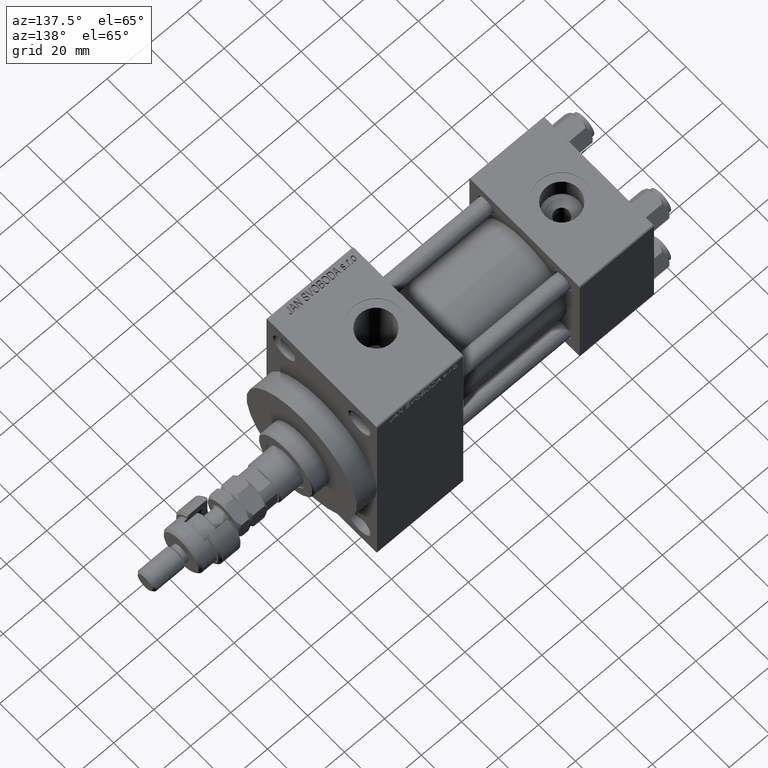
[diagram: clean part render]
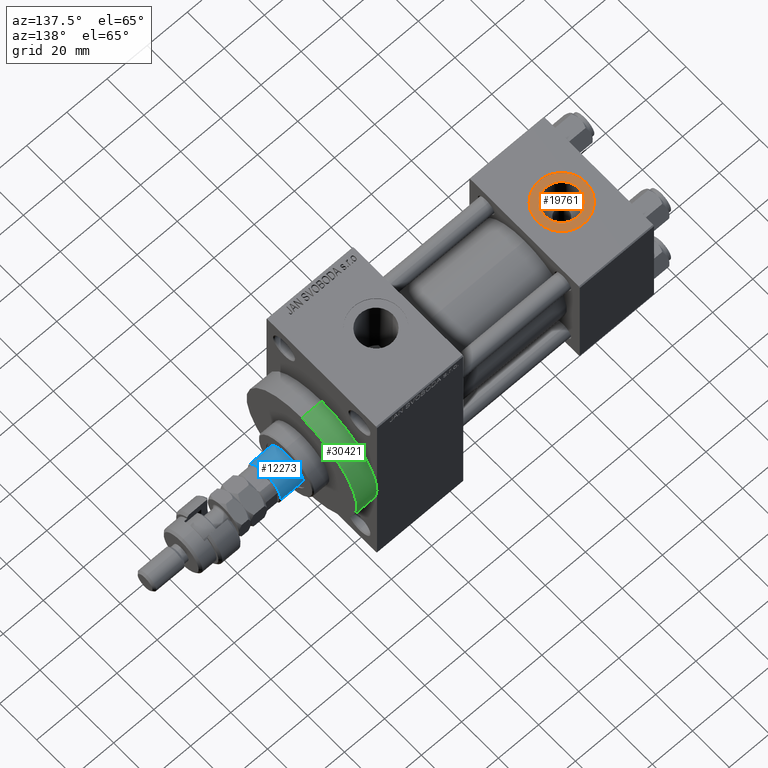
[diagram: same view with three faces highlighted in distinct colors, each labeled with its STEP entity id]
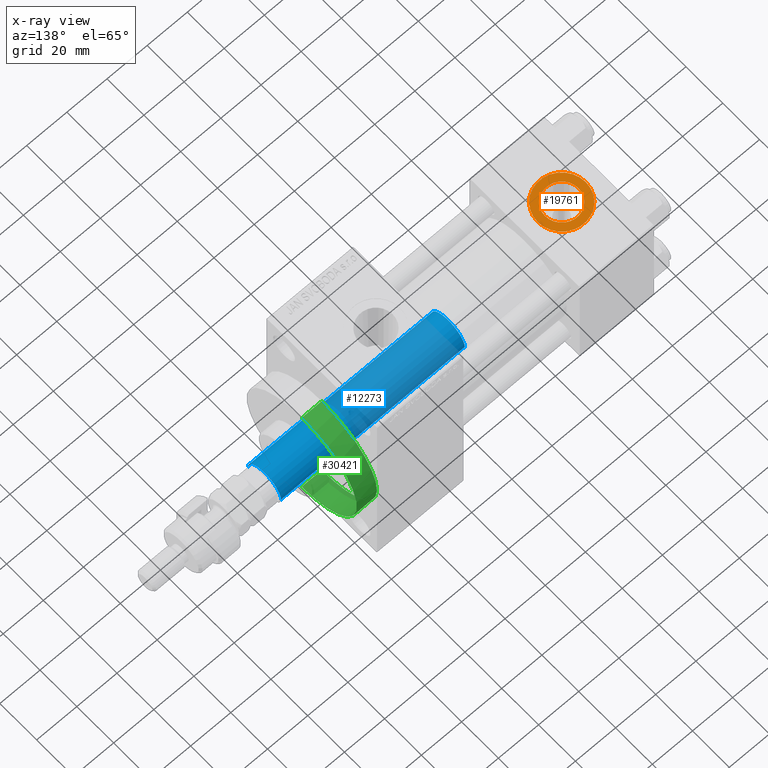
[diagram: x-ray of the same camera — body ghosted, the three highlighted faces saturated]
A machine part, auxiliary view with three faces highlighted in distinct colors.
The next image is the same camera in x-ray (body ghosted, the three faces saturated) — at least one of them is partly hidden behind the body in this view.
Their STEP definitions:

[orange] entity #19761 — the highlighted planar face has unit normal (0, 0, 1).
#197 = DIRECTION ( 'NONE',  ( 0.000000000000000000, 0.000000000000000000, 1.000000000000000000 ) ) ;
#3991 = PLANE ( 'NONE',  #5425 ) ;
#4895 = EDGE_CURVE ( 'NONE', #6168, #49046, #20311, .T. ) ;
#5189 = ORIENTED_EDGE ( 'NONE', *, *, #22609, .T. ) ;
#5425 = AXIS2_PLACEMENT_3D ( 'NONE', #34869, #197, #38913 ) ;
#6168 = VERTEX_POINT ( 'NONE', #46751 ) ;
#7315 = EDGE_LOOP ( 'NONE', ( #5189, #30225 ) ) ;
#7776 = DIRECTION ( 'NONE',  ( 0.000000000000000000, 0.000000000000000000, 1.000000000000000000 ) ) ;
#10542 = AXIS2_PLACEMENT_3D ( 'NONE', #23954, #7776, #19638 ) ;
#10959 = CARTESIAN_POINT ( 'NONE',  ( 10.16999999999999638, -2.449316168263869821E-15, 29.79999999999999716 ) ) ;
#14733 = AXIS2_PLACEMENT_3D ( 'NONE', #27006, #34129, #15871 ) ;
#15871 = DIRECTION ( 'NONE',  ( 1.000000000000000000, 0.000000000000000000, 0.000000000000000000 ) ) ;
#16189 = DIRECTION ( 'NONE',  ( 1.000000000000000000, 0.000000000000000000, 0.000000000000000000 ) ) ;
#19549 = ORIENTED_EDGE ( 'NONE', *, *, #44559, .F. ) ;
#19638 = DIRECTION ( 'NONE',  ( 1.000000000000000000, 0.000000000000000000, 0.000000000000000000 ) ) ;
#19761 = ADVANCED_FACE ( 'NONE', ( #23214, #38669 ), #3991, .T. ) ;
#20311 = CIRCLE ( 'NONE', #40552, 8.330000000000000071 ) ;
#22609 = EDGE_CURVE ( 'NONE', #26451, #49021, #33197, .T. ) ;
#23138 = DIRECTION ( 'NONE',  ( 0.000000000000000000, 0.000000000000000000, 1.000000000000000000 ) ) ;
#23214 = FACE_BOUND ( 'NONE', #47845, .T. ) ;
#23954 = CARTESIAN_POINT ( 'NONE',  ( 18.50000000000000000, -3.469446951953614978E-15, 29.79999999999999716 ) ) ;
#24791 = CARTESIAN_POINT ( 'NONE',  ( 30.50000000000000000, -3.469446951953614978E-15, 29.79999999999999716 ) ) ;
#26451 = VERTEX_POINT ( 'NONE', #24791 ) ;
#27006 = CARTESIAN_POINT ( 'NONE',  ( 18.50000000000000000, -3.469446951953614978E-15, 29.79999999999999716 ) ) ;
#27410 = EDGE_CURVE ( 'NONE', #49021, #26451, #29326, .T. ) ;
#29326 = CIRCLE ( 'NONE', #14733, 12.00000000000000000 ) ;
#29913 = ORIENTED_EDGE ( 'NONE', *, *, #4895, .F. ) ;
#30225 = ORIENTED_EDGE ( 'NONE', *, *, #27410, .T. ) ;
#33197 = CIRCLE ( 'NONE', #10542, 12.00000000000000000 ) ;
#34129 = DIRECTION ( 'NONE',  ( 0.000000000000000000, 0.000000000000000000, 1.000000000000000000 ) ) ;
#34869 = CARTESIAN_POINT ( 'NONE',  ( 18.50000000000000000, -3.469446951953614978E-15, 29.79999999999999716 ) ) ;
#35053 = CARTESIAN_POINT ( 'NONE',  ( 18.50000000000000000, -3.469446951953614978E-15, 29.79999999999999716 ) ) ;
#35444 = AXIS2_PLACEMENT_3D ( 'NONE', #35053, #23138, #49981 ) ;
#38669 = FACE_OUTER_BOUND ( 'NONE', #7315, .T. ) ;
#38913 = DIRECTION ( 'NONE',  ( 1.000000000000000000, 0.000000000000000000, -0.000000000000000000 ) ) ;
#40552 = AXIS2_PLACEMENT_3D ( 'NONE', #46340, #43297, #16189 ) ;
#43297 = DIRECTION ( 'NONE',  ( 0.000000000000000000, 0.000000000000000000, 1.000000000000000000 ) ) ;
#44357 = CIRCLE ( 'NONE', #35444, 8.330000000000000071 ) ;
#44559 = EDGE_CURVE ( 'NONE', #49046, #6168, #44357, .T. ) ;
#45634 = CARTESIAN_POINT ( 'NONE',  ( 6.499999999999997335, -1.999870792976790833E-15, 29.79999999999999716 ) ) ;
#46340 = CARTESIAN_POINT ( 'NONE',  ( 18.50000000000000000, -3.469446951953614978E-15, 29.79999999999999716 ) ) ;
#46751 = CARTESIAN_POINT ( 'NONE',  ( 26.82999999999999829, -3.469446951953614978E-15, 29.79999999999999716 ) ) ;
#47845 = EDGE_LOOP ( 'NONE', ( #29913, #19549 ) ) ;
#49021 = VERTEX_POINT ( 'NONE', #45634 ) ;
#49046 = VERTEX_POINT ( 'NONE', #10959 ) ;
#49981 = DIRECTION ( 'NONE',  ( 1.000000000000000000, 0.000000000000000000, 0.000000000000000000 ) ) ;

[blue] entity #12273 — the highlighted cylindrical surface (edge-blend (fillet) strip) has radius 9 mm, axis along (-1, 0, 0).
#1634 = ORIENTED_EDGE ( 'NONE', *, *, #20786, .T. ) ;
#2264 = CARTESIAN_POINT ( 'NONE',  ( 0.000000000000000000, 0.000000000000000000, 130.0000000000000000 ) ) ;
#3472 = CARTESIAN_POINT ( 'NONE',  ( -9.000000000000000000, 0.000000000000000000, 130.0000000000000000 ) ) ;
#5330 = ORIENTED_EDGE ( 'NONE', *, *, #49452, .F. ) ;
#6947 = EDGE_CURVE ( 'NONE', #22898, #25403, #31697, .T. ) ;
#8573 = EDGE_LOOP ( 'NONE', ( #5330, #27372, #1634, #22064 ) ) ;
#9037 = LINE ( 'NONE', #35869, #37732 ) ;
#9211 = AXIS2_PLACEMENT_3D ( 'NONE', #2264, #29811, #21723 ) ;
#12273 = ADVANCED_FACE ( 'NONE', ( #21960 ), #14375, .T. ) ;
#12325 = DIRECTION ( 'NONE',  ( -0.000000000000000000, -0.000000000000000000, -1.000000000000000000 ) ) ;
#14340 = VECTOR ( 'NONE', #15588, 1000.000000000000000 ) ;
#14375 = CYLINDRICAL_SURFACE ( 'NONE', #9211, 9.000000000000000000 ) ;
#14968 = CARTESIAN_POINT ( 'NONE',  ( -9.000000000000000000, 0.000000000000000000, 129.5000000000000000 ) ) ;
#15588 = DIRECTION ( 'NONE',  ( -0.000000000000000000, -0.000000000000000000, -1.000000000000000000 ) ) ;
#16085 = VERTEX_POINT ( 'NONE', #42177 ) ;
#18675 = CARTESIAN_POINT ( 'NONE',  ( 0.000000000000000000, 0.000000000000000000, 129.5000000000000000 ) ) ;
#20666 = DIRECTION ( 'NONE',  ( 0.000000000000000000, 0.000000000000000000, 1.000000000000000000 ) ) ;
#20786 = EDGE_CURVE ( 'NONE', #25403, #41037, #38147, .T. ) ;
#21723 = DIRECTION ( 'NONE',  ( -1.000000000000000000, 0.000000000000000000, 0.000000000000000000 ) ) ;
#21960 = FACE_OUTER_BOUND ( 'NONE', #8573, .T. ) ;
#21991 = DIRECTION ( 'NONE',  ( 1.000000000000000000, 0.000000000000000000, 0.000000000000000000 ) ) ;
#22064 = ORIENTED_EDGE ( 'NONE', *, *, #36762, .T. ) ;
#22898 = VERTEX_POINT ( 'NONE', #46439 ) ;
#25403 = VERTEX_POINT ( 'NONE', #14968 ) ;
#25478 = CIRCLE ( 'NONE', #44895, 9.000000000000000000 ) ;
#27372 = ORIENTED_EDGE ( 'NONE', *, *, #6947, .T. ) ;
#27487 = CARTESIAN_POINT ( 'NONE',  ( 0.000000000000000000, 0.000000000000000000, 38.00000000000000000 ) ) ;
#29811 = DIRECTION ( 'NONE',  ( -0.000000000000000000, -0.000000000000000000, -1.000000000000000000 ) ) ;
#31697 = CIRCLE ( 'NONE', #40620, 9.000000000000000000 ) ;
#35869 = CARTESIAN_POINT ( 'NONE',  ( 9.000000000000000000, 1.102182119232617714E-15, 130.0000000000000000 ) ) ;
#36762 = EDGE_CURVE ( 'NONE', #41037, #16085, #25478, .T. ) ;
#37732 = VECTOR ( 'NONE', #12325, 1000.000000000000000 ) ;
#37913 = CARTESIAN_POINT ( 'NONE',  ( -9.000000000000000000, 0.000000000000000000, 38.00000000000000000 ) ) ;
#37935 = DIRECTION ( 'NONE',  ( 0.000000000000000000, 0.000000000000000000, -1.000000000000000000 ) ) ;
#38147 = LINE ( 'NONE', #3472, #14340 ) ;
#40620 = AXIS2_PLACEMENT_3D ( 'NONE', #18675, #37935, #21991 ) ;
#41037 = VERTEX_POINT ( 'NONE', #37913 ) ;
#42177 = CARTESIAN_POINT ( 'NONE',  ( 9.000000000000000000, 1.102182119232617714E-15, 38.00000000000000000 ) ) ;
#44895 = AXIS2_PLACEMENT_3D ( 'NONE', #27487, #20666, #47757 ) ;
#46439 = CARTESIAN_POINT ( 'NONE',  ( 9.000000000000000000, 1.102182119232617714E-15, 129.5000000000000000 ) ) ;
#47757 = DIRECTION ( 'NONE',  ( 1.000000000000000000, 0.000000000000000000, 0.000000000000000000 ) ) ;
#49452 = EDGE_CURVE ( 'NONE', #22898, #16085, #9037, .T. ) ;

[green] entity #30421 — the highlighted cylindrical surface (partial cylindrical patch) has radius 30 mm, axis along (-1, -0, -0).
#356 = AXIS2_PLACEMENT_3D ( 'NONE', #8960, #5931, #21606 ) ;
#518 = CARTESIAN_POINT ( 'NONE',  ( 148.0000000000000284, 0.000000000000000000, 0.000000000000000000 ) ) ;
#2370 = CIRCLE ( 'NONE', #47582, 30.00000000000000000 ) ;
#3363 = CARTESIAN_POINT ( 'NONE',  ( 148.0000000000000284, 0.000000000000000000, 30.00000000000000000 ) ) ;
#4268 = EDGE_LOOP ( 'NONE', ( #14352, #19292, #49469, #45661, #13614 ) ) ;
#5931 = DIRECTION ( 'NONE',  ( 1.000000000000000000, 0.000000000000000000, 0.000000000000000000 ) ) ;
#8284 = VERTEX_POINT ( 'NONE', #43927 ) ;
#8960 = CARTESIAN_POINT ( 'NONE',  ( 138.0000000000000000, 0.000000000000000000, 0.000000000000000000 ) ) ;
#9228 = AXIS2_PLACEMENT_3D ( 'NONE', #29917, #13744, #13990 ) ;
#10219 = VERTEX_POINT ( 'NONE', #35907 ) ;
#10447 = FACE_OUTER_BOUND ( 'NONE', #4268, .T. ) ;
#13614 = ORIENTED_EDGE ( 'NONE', *, *, #47111, .F. ) ;
#13744 = DIRECTION ( 'NONE',  ( -1.000000000000000000, -0.000000000000000000, -0.000000000000000000 ) ) ;
#13990 = DIRECTION ( 'NONE',  ( 0.000000000000000000, 0.000000000000000000, 1.000000000000000000 ) ) ;
#14134 = LINE ( 'NONE', #45028, #21724 ) ;
#14352 = ORIENTED_EDGE ( 'NONE', *, *, #45007, .F. ) ;
#15158 = VERTEX_POINT ( 'NONE', #36677 ) ;
#15444 = EDGE_CURVE ( 'NONE', #31224, #8284, #23847, .T. ) ;
#16938 = VECTOR ( 'NONE', #49665, 1000.000000000000000 ) ;
#17757 = CARTESIAN_POINT ( 'NONE',  ( 148.0000000000000284, 3.673940397442059178E-15, -30.00000000000000000 ) ) ;
#19292 = ORIENTED_EDGE ( 'NONE', *, *, #45562, .T. ) ;
#21401 = DIRECTION ( 'NONE',  ( 1.000000000000000000, 0.000000000000000000, 0.000000000000000000 ) ) ;
#21606 = DIRECTION ( 'NONE',  ( 0.000000000000000000, 0.000000000000000000, -1.000000000000000000 ) ) ;
#21724 = VECTOR ( 'NONE', #25770, 1000.000000000000000 ) ;
#23847 = CIRCLE ( 'NONE', #41656, 30.00000000000000000 ) ;
#25770 = DIRECTION ( 'NONE',  ( -1.000000000000000000, -0.000000000000000000, -0.000000000000000000 ) ) ;
#27319 = DIRECTION ( 'NONE',  ( 1.000000000000000000, 0.000000000000000000, 0.000000000000000000 ) ) ;
#29917 = CARTESIAN_POINT ( 'NONE',  ( 148.0000000000000284, 0.000000000000000000, 0.000000000000000000 ) ) ;
#30421 = ADVANCED_FACE ( 'NONE', ( #10447 ), #41316, .T. ) ;
#31224 = VERTEX_POINT ( 'NONE', #38014 ) ;
#35907 = CARTESIAN_POINT ( 'NONE',  ( 138.0000000000000000, 0.000000000000000000, 30.00000000000000000 ) ) ;
#36044 = EDGE_CURVE ( 'NONE', #8284, #10219, #41592, .T. ) ;
#36677 = CARTESIAN_POINT ( 'NONE',  ( 148.0000000000000284, 0.000000000000000000, 30.00000000000000000 ) ) ;
#36863 = DIRECTION ( 'NONE',  ( 0.000000000000000000, 0.000000000000000000, -1.000000000000000000 ) ) ;
#38014 = CARTESIAN_POINT ( 'NONE',  ( 138.0000000000000000, 3.673940397442059178E-15, -30.00000000000000000 ) ) ;
#38040 = LINE ( 'NONE', #3363, #16938 ) ;
#40139 = CARTESIAN_POINT ( 'NONE',  ( 138.0000000000000000, 0.000000000000000000, 0.000000000000000000 ) ) ;
#41316 = CYLINDRICAL_SURFACE ( 'NONE', #9228, 30.00000000000000000 ) ;
#41592 = CIRCLE ( 'NONE', #356, 30.00000000000000000 ) ;
#41656 = AXIS2_PLACEMENT_3D ( 'NONE', #40139, #21401, #36863 ) ;
#42027 = DIRECTION ( 'NONE',  ( 0.000000000000000000, 0.000000000000000000, -1.000000000000000000 ) ) ;
#43927 = CARTESIAN_POINT ( 'NONE',  ( 138.0000000000000000, 30.00000000000000000, 0.000000000000000000 ) ) ;
#45007 = EDGE_CURVE ( 'NONE', #49220, #15158, #2370, .T. ) ;
#45028 = CARTESIAN_POINT ( 'NONE',  ( 148.0000000000000284, 3.673940397442059178E-15, -30.00000000000000000 ) ) ;
#45562 = EDGE_CURVE ( 'NONE', #49220, #31224, #14134, .T. ) ;
#45661 = ORIENTED_EDGE ( 'NONE', *, *, #36044, .T. ) ;
#47111 = EDGE_CURVE ( 'NONE', #15158, #10219, #38040, .T. ) ;
#47582 = AXIS2_PLACEMENT_3D ( 'NONE', #518, #27319, #42027 ) ;
#49220 = VERTEX_POINT ( 'NONE', #17757 ) ;
#49469 = ORIENTED_EDGE ( 'NONE', *, *, #15444, .T. ) ;
#49665 = DIRECTION ( 'NONE',  ( -1.000000000000000000, -0.000000000000000000, -0.000000000000000000 ) ) ;